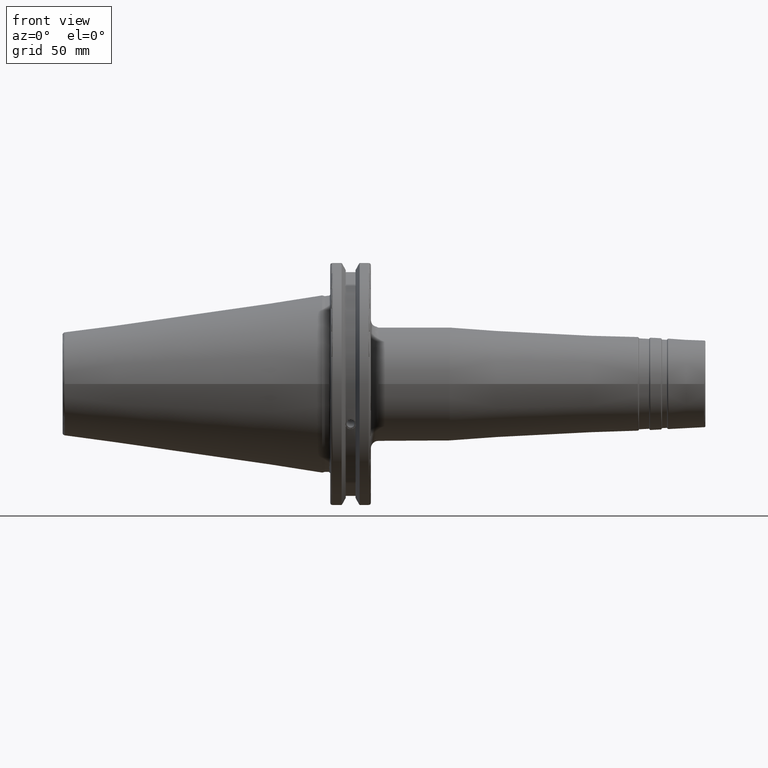
[diagram: clean part render]
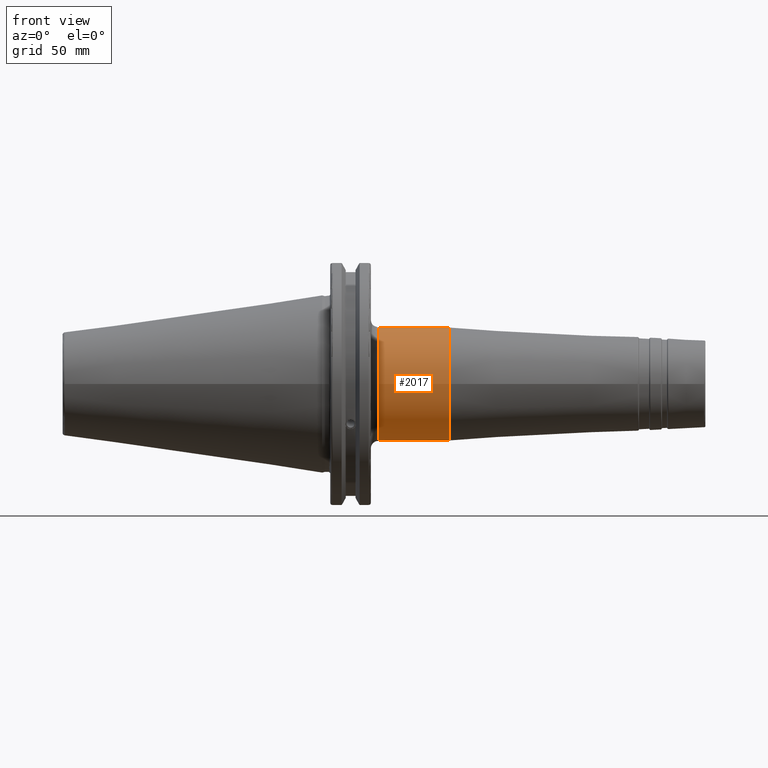
[diagram: same view with one face highlighted and labeled with its STEP entity id]
A machine part, front view. The second image highlights one B-rep face of the part: STEP entity #2017.
In plain terms, the highlighted cylindrical surface (bore or boss wall) has radius 22.25 mm, axis along (1, 0, 0).
Its self-contained STEP definition (entity closure, byte-faithful):
#172=FACE_OUTER_BOUND('',#278,.T.);
#278=EDGE_LOOP('',(#1364,#1365,#1366,#1367,#1368,#1369,#1370));
#399=LINE('',#3227,#501);
#501=VECTOR('',#2459,22.25);
#606=CIRCLE('',#2148,22.25);
#610=CIRCLE('',#2152,22.25);
#611=CIRCLE('',#2153,22.25);
#612=CIRCLE('',#2155,22.25);
#613=CIRCLE('',#2156,22.25);
#781=VERTEX_POINT('',#3211);
#782=VERTEX_POINT('',#3212);
#785=VERTEX_POINT('',#3219);
#786=VERTEX_POINT('',#3223);
#787=VERTEX_POINT('',#3224);
#1020=EDGE_CURVE('',#781,#782,#606,.T.);
#1024=EDGE_CURVE('',#782,#785,#610,.T.);
#1025=EDGE_CURVE('',#785,#781,#611,.T.);
#1026=EDGE_CURVE('',#786,#787,#612,.T.);
#1027=EDGE_CURVE('',#787,#786,#613,.T.);
#1028=EDGE_CURVE('',#787,#785,#399,.T.);
#1364=ORIENTED_EDGE('',*,*,#1026,.F.);
#1365=ORIENTED_EDGE('',*,*,#1027,.F.);
#1366=ORIENTED_EDGE('',*,*,#1028,.T.);
#1367=ORIENTED_EDGE('',*,*,#1024,.F.);
#1368=ORIENTED_EDGE('',*,*,#1020,.F.);
#1369=ORIENTED_EDGE('',*,*,#1025,.F.);
#1370=ORIENTED_EDGE('',*,*,#1028,.F.);
#1987=CYLINDRICAL_SURFACE('',#2154,22.25);
#2017=ADVANCED_FACE('',(#172),#1987,.T.);
#2148=AXIS2_PLACEMENT_3D('',#3213,#2441,#2442);
#2152=AXIS2_PLACEMENT_3D('',#3220,#2449,#2450);
#2153=AXIS2_PLACEMENT_3D('',#3221,#2451,#2452);
#2154=AXIS2_PLACEMENT_3D('',#3222,#2453,#2454);
#2155=AXIS2_PLACEMENT_3D('',#3225,#2455,#2456);
#2156=AXIS2_PLACEMENT_3D('',#3226,#2457,#2458);
#2441=DIRECTION('center_axis',(-1.,0.,0.));
#2442=DIRECTION('ref_axis',(0.,-1.,-1.22464679914735E-16));
#2449=DIRECTION('center_axis',(-1.,0.,0.));
#2450=DIRECTION('ref_axis',(0.,-1.,-1.22464679914735E-16));
#2451=DIRECTION('center_axis',(-1.,0.,0.));
#2452=DIRECTION('ref_axis',(0.,-1.,-1.22464679914735E-16));
#2453=DIRECTION('center_axis',(1.,0.,0.));
#2454=DIRECTION('ref_axis',(0.,1.,0.));
#2455=DIRECTION('center_axis',(1.,0.,0.));
#2456=DIRECTION('ref_axis',(0.,0.,-1.));
#2457=DIRECTION('center_axis',(1.,0.,0.));
#2458=DIRECTION('ref_axis',(0.,0.,-1.));
#2459=DIRECTION('',(-1.,0.,0.));
#3211=CARTESIAN_POINT('',(22.05,22.25,0.));
#3212=CARTESIAN_POINT('',(22.05,-2.72483912810286E-15,-22.25));
#3213=CARTESIAN_POINT('Origin',(22.05,0.,0.));
#3219=CARTESIAN_POINT('',(22.05,-22.25,-2.72483912810286E-15));
#3220=CARTESIAN_POINT('Origin',(22.05,0.,0.));
#3221=CARTESIAN_POINT('Origin',(22.05,0.,0.));
#3222=CARTESIAN_POINT('Origin',(34.4370161947135,0.,0.));
#3223=CARTESIAN_POINT('',(49.8240323894269,22.25,0.));
#3224=CARTESIAN_POINT('',(49.8240323894269,-22.25,-2.72483912810286E-15));
#3225=CARTESIAN_POINT('Origin',(49.8240323894269,0.,0.));
#3226=CARTESIAN_POINT('Origin',(49.8240323894269,0.,0.));
#3227=CARTESIAN_POINT('',(34.4370161947135,-22.25,-2.72483912810286E-15));